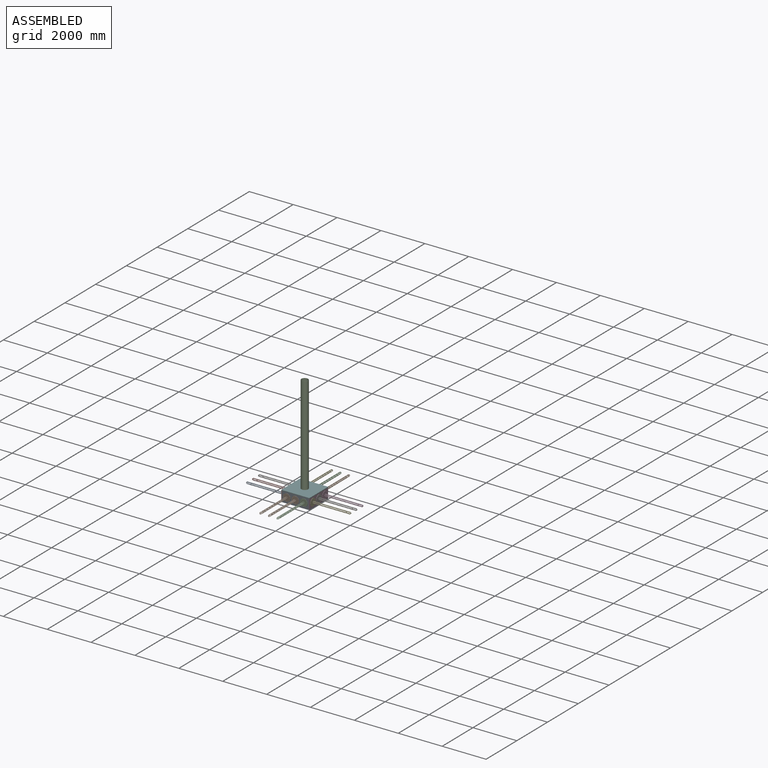
[diagram: assembled view]
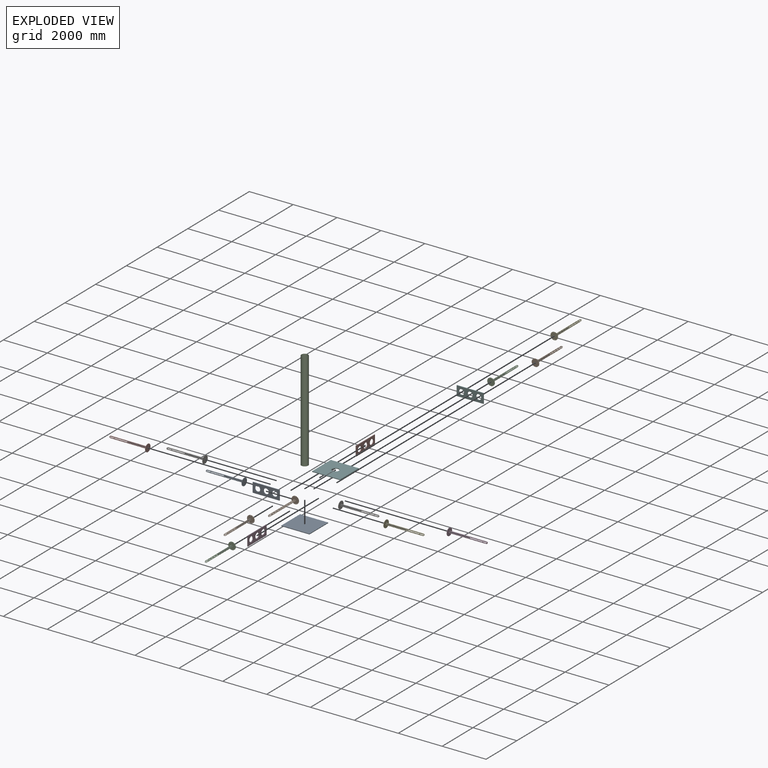
[diagram: exploded view]
GUIDED TOUR — MATED ASSEMBLY (Onshape document 75ec9b23009028ea6bf3534d, AutoMate assembly 75ec9b23009028ea6bf3534d_79885c54aa311b764d483315_f944a970cd1b9b2b946f377e_default)

This assembly has 19 components, labeled P0..P18 below (a component is one placed occurrence of a part; the same part can appear more than once), held together by 53 mates. A mate is a constraint between two components; its type names the relative motion it leaves free:
  CYLINDRICAL — leaves both rotation about and translation along the listed axis free,
  PLANAR — leaves sliding in the plane through the listed point (normal = the listed direction) and rotation about that normal free.
Axis/direction vectors are unit vectors and 'through' points are millimeter coordinates, both in the assembly's world frame.

MATES
  1. CYLINDRICAL "Cylindrical 24": P12 <-> P11, axis (1.000, 0.000, 0.000) through (1382.68, 472.31, -143.87) mm
  2. PLANAR "Planar 22": P8 <-> P15, direction (1.000, 0.000, 0.000) through (89.98, 600.04, -365.12) mm
  3. PLANAR "Planar 27": P3 <-> P11, direction (-1.000, 0.000, 0.000) through (1369.98, 1104.81, -291.37) mm
  4. PLANAR "Planar 25": P4 <-> P13, direction (0.000, -1.000, 0.000) through (339.98, 1472.31, -291.37) mm
  5. PLANAR "Planar 14": P5 <-> P13, direction (0.000, 1.000, 0.000) through (729.98, 1472.31, -56.37) mm
  6. PLANAR "Planar 5": P15 <-> P16, direction (1.000, 0.000, 0.000) through (119.98, 862.31, -71.37) mm
  7. CYLINDRICAL "Cylindrical 2": P10 <-> P16, axis (0.000, -1.000, 0.000) through (1267.48, 239.61, -291.37) mm
  8. CYLINDRICAL "Cylindrical 25": P12 <-> P11, axis (1.000, 0.000, 0.000) through (1382.68, 546.06, -163.63) mm
  9. CYLINDRICAL "Cylindrical 18": P1 <-> P13, axis (0.000, 1.000, 0.000) through (1119.98, 1485.01, -438.87) mm
  10. PLANAR "Planar 20": P6 <-> P15, direction (1.000, 0.000, 0.000) through (89.98, 1399.81, -291.37) mm
  11. CYLINDRICAL "Cylindrical 9": P8 <-> P15, axis (-1.000, 0.000, 0.000) through (77.28, 398.56, -163.63) mm
  12. PLANAR "Planar 2": P16 <-> P11, direction (1.000, 0.000, 0.000) through (1339.98, 267.31, -291.37) mm
  13. PLANAR "Planar 26": P12 <-> P11, direction (-1.000, 0.000, 0.000) through (1369.98, 472.31, -291.37) mm
  14. PLANAR "Planar 4": P13 <-> P11, direction (1.000, 0.000, 0.000) through (1339.98, 1457.31, -291.37) mm
  15. CYLINDRICAL "Cylindrical 16": P2 <-> P13, axis (0.000, 1.000, 0.000) through (877.48, 1485.01, -291.37) mm
  16. PLANAR "Planar 3": P15 <-> P13, direction (0.000, 1.000, 0.000) through (104.98, 1472.31, -291.37) mm
  17. CYLINDRICAL "Cylindrical 14": P4 <-> P13, axis (0.000, 1.000, 0.000) through (487.48, 1485.01, -291.37) mm
  18. CYLINDRICAL "Cylindrical 11": P7 <-> P15, axis (-1.000, 0.000, 0.000) through (77.28, 936.06, -419.11) mm
  19. CYLINDRICAL "Cylindrical 1": P18 <-> P5, axis (0.000, 0.000, -1.000) through (729.98, 862.31, -71.37) mm
  20. PLANAR "Planar 12": P16 <-> P0, direction (0.000, -1.000, 0.000) through (729.98, 252.31, -291.37) mm
  21. CYLINDRICAL "Cylindrical 5": P17 <-> P16, axis (0.000, -1.000, 0.000) through (857.72, 239.61, -217.62) mm
  22. CYLINDRICAL "Cylindrical 7": P9 <-> P16, axis (0.000, -1.000, 0.000) through (413.73, 239.61, -163.63) mm
  23. PLANAR "Planar 16": P18 <-> P5, direction (0.000, 0.000, -1.000) through (729.98, 862.31, -71.37) mm
  24. CYLINDRICAL "Cylindrical 10": P7 <-> P15, axis (-1.000, 0.000, 0.000) through (77.28, 862.31, -438.87) mm
  25. PLANAR "Planar 10": P0 <-> P11, direction (0.000, 0.000, 1.000) through (729.98, 862.31, -511.37) mm
  26. CYLINDRICAL "Cylindrical 19": P1 <-> P13, axis (0.000, 1.000, 0.000) through (1046.23, 1485.01, -419.11) mm
  27. CYLINDRICAL "Cylindrical 20": P3 <-> P11, axis (1.000, 0.000, 0.000) through (1382.68, 1252.31, -143.87) mm
  28. CYLINDRICAL "Cylindrical 3": P10 <-> P16, axis (0.000, -1.000, 0.000) through (1247.72, 239.61, -365.12) mm
  29. CYLINDRICAL "Cylindrical 22": P14 <-> P11, axis (-1.000, 0.000, 0.000) through (1369.98, 862.31, -143.87) mm
  30. CYLINDRICAL "Cylindrical 21": P3 <-> P11, axis (1.000, 0.000, 0.000) through (1382.68, 1326.06, -163.63) mm
  31. CYLINDRICAL "Cylindrical 15": P4 <-> P13, axis (0.000, 1.000, 0.000) through (467.72, 1485.01, -365.12) mm
  32. PLANAR "Planar 28": P14 <-> P11, direction (-1.000, 0.000, 0.000) through (1369.98, 862.31, -291.37) mm
  33. PLANAR "Planar 21": P7 <-> P15, direction (1.000, 0.000, 0.000) through (89.98, 1009.81, -291.37) mm
  34. PLANAR "Planar 8": P15 <-> P13, direction (0.000, 0.000, 1.000) through (104.98, 862.31, -71.37) mm
  35. CYLINDRICAL "Cylindrical 13": P15 <-> P6, axis (-1.000, 0.000, 0.000) through (89.98, 1326.06, -419.11) mm
  36. PLANAR "Planar 7": P13 <-> P11, direction (0.000, 0.000, 1.000) through (1339.98, 1442.31, -71.37) mm
  37. PLANAR "Planar 18": P17 <-> P16, direction (0.000, 1.000, 0.000) through (729.98, 252.31, -291.37) mm
  38. CYLINDRICAL "Cylindrical 8": P8 <-> P15, axis (-1.000, 0.000, 0.000) through (77.28, 472.31, -143.87) mm
  39. PLANAR "Planar 17": P10 <-> P16, direction (0.000, 1.000, 0.000) through (1119.98, 252.31, -291.37) mm
  40. PLANAR "Planar 9": P16 <-> P11, direction (0.000, 0.000, 1.000) through (729.98, 267.31, -71.37) mm
  41. PLANAR "Planar 15": P5 <-> P15, direction (-1.000, 0.000, 0.000) through (89.98, 862.31, -56.37) mm
  42. CYLINDRICAL "Cylindrical 23": P14 <-> P11, axis (1.000, 0.000, 0.000) through (1382.68, 936.06, -163.63) mm
  43. PLANAR "Planar 23": P2 <-> P13, direction (0.000, -1.000, 0.000) through (710.93, 1472.31, -324.37) mm
  44. PLANAR "Planar 24": P1 <-> P13, direction (0.000, -1.000, 0.000) through (1193.73, 1472.31, -419.11) mm
  45. PLANAR "Planar 6": P15 <-> P16, direction (0.000, -1.000, 0.000) through (104.98, 252.31, -291.37) mm
  46. PLANAR "Planar 13": P13 <-> P5, direction (0.000, 0.000, 1.000) through (1339.98, 1442.31, -71.37) mm
  47. CYLINDRICAL "Cylindrical 6": P9 <-> P16, axis (0.000, -1.000, 0.000) through (339.98, 239.61, -143.87) mm
  48. CYLINDRICAL "Cylindrical 12": P6 <-> P15, axis (-1.000, 0.000, 0.000) through (77.28, 1252.31, -438.87) mm
  49. CYLINDRICAL "Cylindrical 17": P2 <-> P13, axis (0.000, 1.000, 0.000) through (857.72, 1485.01, -365.12) mm
  50. PLANAR "Planar 1": P11 <-> P16, direction (0.000, -1.000, 0.000) through (1354.98, 252.31, -291.37) mm
  51. CYLINDRICAL "Cylindrical 4": P17 <-> P16, axis (0.000, -1.000, 0.000) through (803.73, 239.61, -163.63) mm
  52. PLANAR "Planar 19": P9 <-> P16, direction (0.000, 1.000, 0.000) through (467.72, 252.31, -217.62) mm
  53. PLANAR "Planar 11": P15 <-> P0, direction (-1.000, 0.000, 0.000) through (89.98, 862.31, -291.37) mm

ASSEMBLY ORDER
  1. P17 — the base component [order verified]
  2. P9 [order verified]
  3. P16 [order verified]
  4. P5 [order verified]
  5. P8 [order verified]
  6. P6 [order verified]
  7. P10 [order verified]
  8. P7 [order verified]
  9. P15 [order verified]
  10. P4 [order verified]
  11. P0 [order verified]
  12. P1 [order verified]
  13. P11 [order verified]
  14. P14 [order verified]
  15. P12 [order verified]
  16. P3 [order verified]
  17. P13 [order verified]
  18. P18 [order verified]
  19. P2 [order verified]
Order-tag legend:
  [order verified] — this step's position reverses a verified removal order: the component was checked to insert without passing through the ones already placed.

Of the 19 components, 7 carry the full construction recipe — the FeatureScript program that regenerates the part's solid from scratch; the rest are supplied as boundary geometry only.
Because this assembly has more than 12 components, the tour below covers the 12 most significant ones individually (every recipe-attached component first, then the largest by part volume), in assembly order; the remaining 7 are summarized together in a grouped section at the end.
Each toured component is shown spotlighted twice — in the assembled view, then in the exploded view, where a leader line traces a displaced component back to its assembled socket (saturated green if recipe-attached, orange if geometry-only; every other component desaturated gray) — followed by its recipe or geometry summary and the mates that hold it.
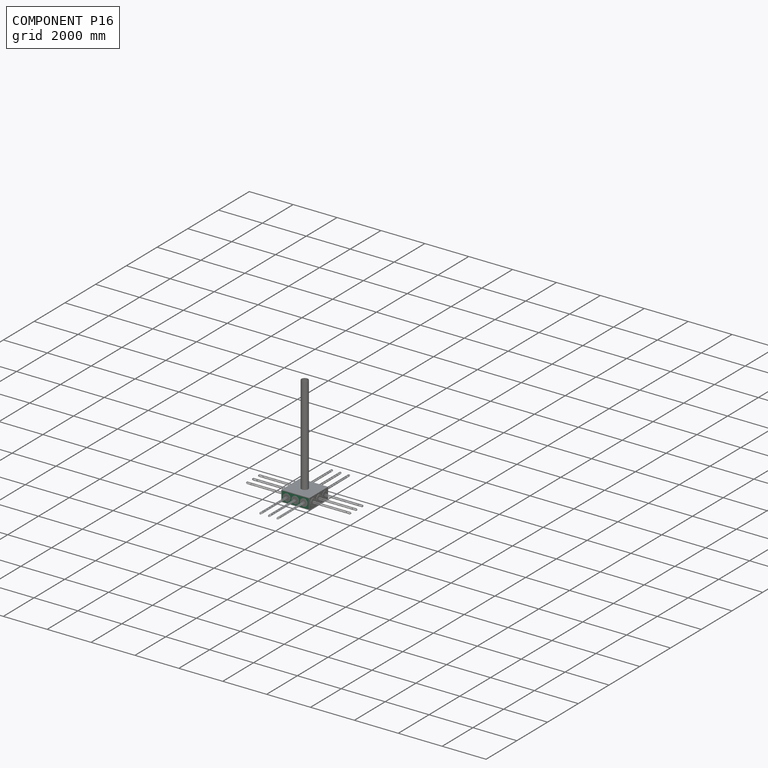
[diagram: component P16 — assembled]
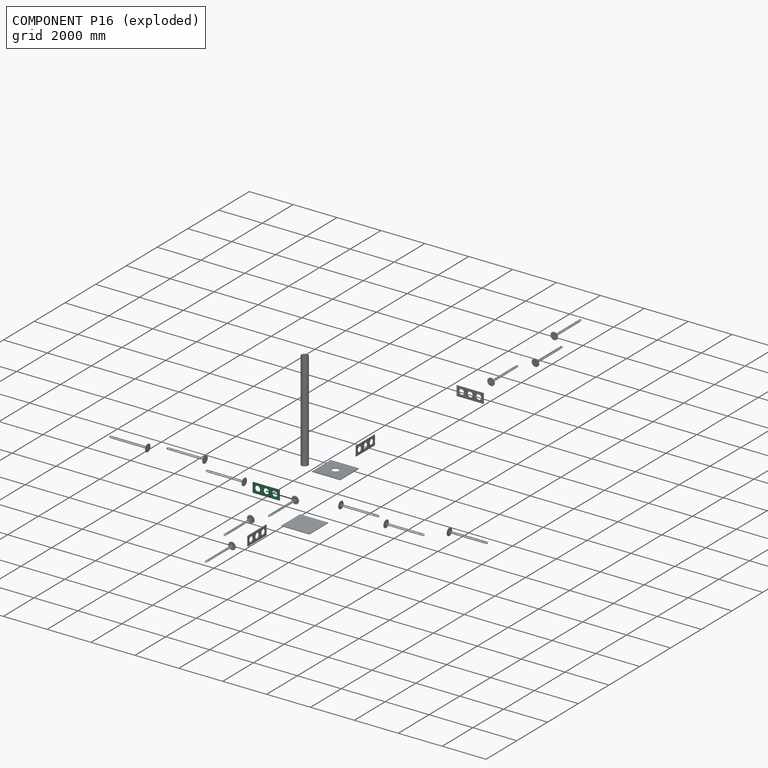
[diagram: component P16 — exploded]
COMPONENT P16 — same part as P11 (CADFS 00186368); its construction recipe is shown at P11.
Held by: PLANAR mate "Planar 5" to P15; CYLINDRICAL mate "Cylindrical 2" to P10; PLANAR mate "Planar 2" to P11; PLANAR mate "Planar 12" to P0; CYLINDRICAL mate "Cylindrical 5" to P17; CYLINDRICAL mate "Cylindrical 7" to P9; CYLINDRICAL mate "Cylindrical 3" to P10; PLANAR mate "Planar 18" to P17; PLANAR mate "Planar 17" to P10; PLANAR mate "Planar 9" to P11; PLANAR mate "Planar 6" to P15; CYLINDRICAL mate "Cylindrical 6" to P9; PLANAR mate "Planar 1" to P11; CYLINDRICAL mate "Cylindrical 4" to P17; PLANAR mate "Planar 19" to P9.
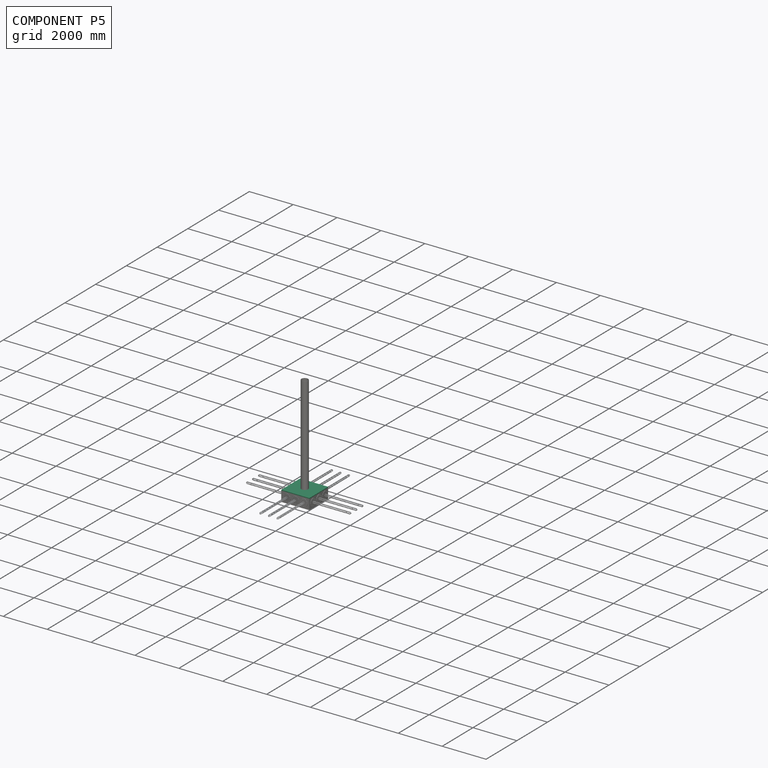
[diagram: component P5 — assembled]
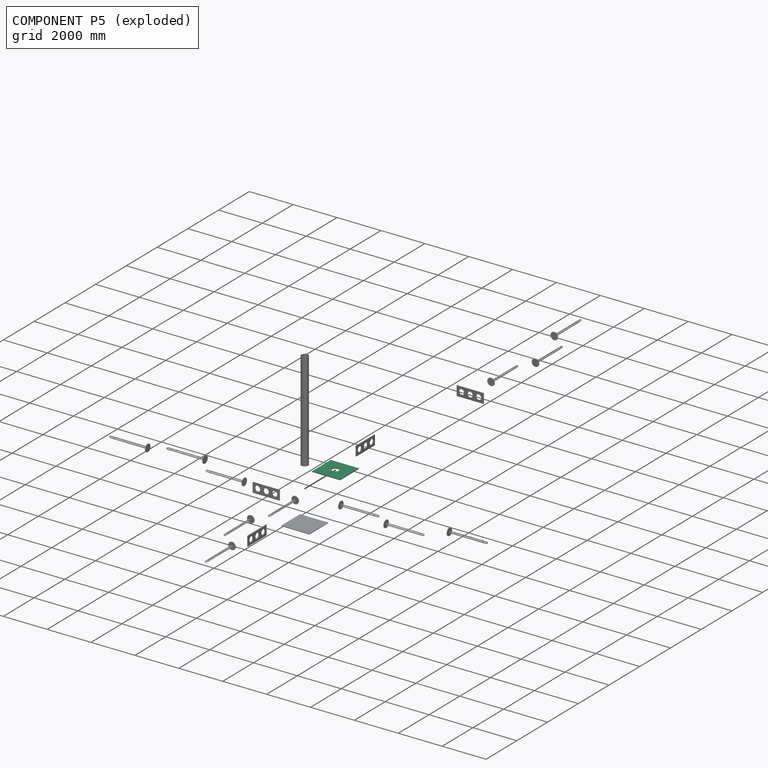
[diagram: component P5 — exploded]
COMPONENT P5 — recipe-attached (CADFS 00186370, mesh-verified: the recipe's output STEP matches this component's geometry to below the mesh-comparison resolution (tessellation chordal tolerance ~2.65 mm)).
Held by: PLANAR mate "Planar 14" to P13; CYLINDRICAL mate "Cylindrical 1" to P18; PLANAR mate "Planar 16" to P18; PLANAR mate "Planar 15" to P15; PLANAR mate "Planar 13" to P13.
Construction recipe (FeatureScript — the CAD program that rebuilds this solid; sketch coordinates are in the units given by the * unit suffixes, e.g. mm):

FeatureScript 1511;
import(path : "onshape/std/geometry.fs", version : "1511.0");
import(path : "onshape/std/common.fs", version : "1511.0");
const mm = millimeter;
const VERTEX = EntityType.VERTEX;
const EDGE = EntityType.EDGE;
const FACE = EntityType.FACE;
const BODY = EntityType.BODY;
function v(x, y){return vector(x, y);}
function OD(order){return orderDisambiguation(order);}
function OSD(set){return originalSetDisambiguation(set);}
function TD(topology){return topologyDisambiguation(topology);}
function TDD(query){return trueDependencyDisambiguation(query);}
function sQuery(a, b, c) {return sketchEntityQuery(a, b, c);}

annotation { "Feature Type Name" : "Feature", "Feature Type Description" : "" }
export const myFeature = defineFeature(function(context is Context, id is Id, definition is map)
    precondition{}
    {
        {
            var Q0;
            Q0=qCreatedBy(makeId("Top.planeOp"),FACE);
            var sketch = newSketch(context, id + "F0", { "sketchPlane" : qUnion([Q0])});
            skLineSegment(sketch, "E0.bottom", {"start": v(-1280, 1220) * mm, "end": v(0, 1220) * mm});
            skLineSegment(sketch, "E0.top", {"start": v(-1280, 0) * mm, "end": v(0, 0) * mm});
            skLineSegment(sketch, "E0.left", {"start": v(-1280, 1220) * mm, "end": v(-1280, 0) * mm});
            skLineSegment(sketch, "E0.right", {"start": v(0, 1220) * mm, "end": v(0, 0) * mm});
            skCircle(sketch, "E1", {"center": v(-640, 610) * mm, "radius": 153 * mm});
            skLineSegment(sketch, "E2", {"start": v(-640, 610) * mm, "end": v(-640, 0) * mm, "construction": true});
            skLineSegment(sketch, "E3", {"start": v(-640, 610) * mm, "end": v(0, 610) * mm, "construction": true});
            skSolve(sketch);
        }
        {
            var Q0;
            Q0 = qSketchRegion(id + "F0", true);
            extrude(context, id + "F1", {"entities" : qUnion([Q0]), "depth" : 30 * mm});
        }
    });
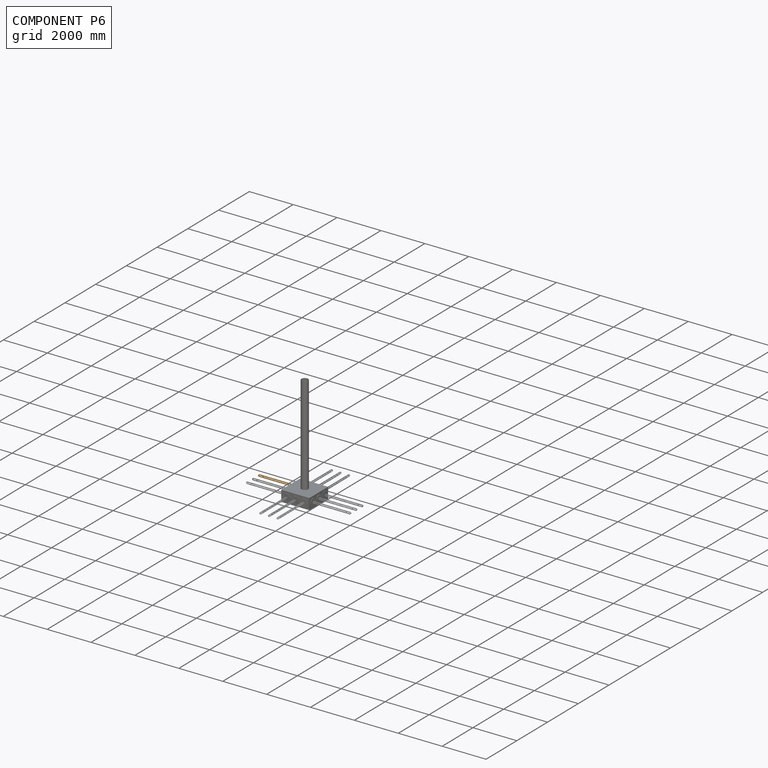
[diagram: component P6 — assembled]
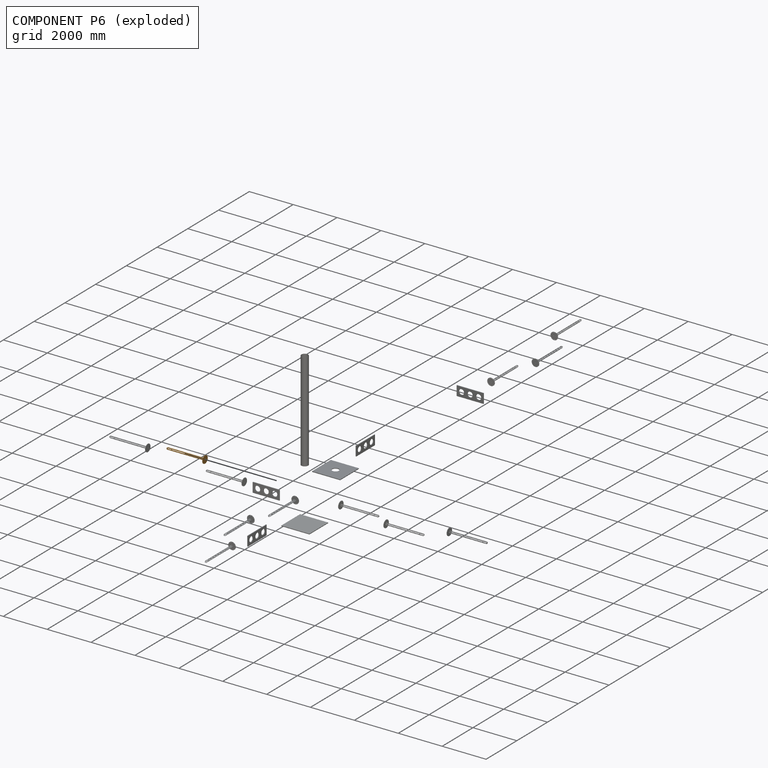
[diagram: component P6 — exploded]
COMPONENT P6 — geometry summary (no construction recipe available for this part):
  bounding box: 1746.7 x 340.0 x 340.0 mm
  B-rep topology: 1 solid, 33 faces, 194 edges
  volume: 1468101 mm^3 (1% of its bounding box)
  symmetry: 2-fold rotationally symmetric about the y axis; mirror-symmetric across its x mid-plane, z mid-plane
Held by: PLANAR mate "Planar 20" to P15; CYLINDRICAL mate "Cylindrical 13" to P15; CYLINDRICAL mate "Cylindrical 12" to P15.
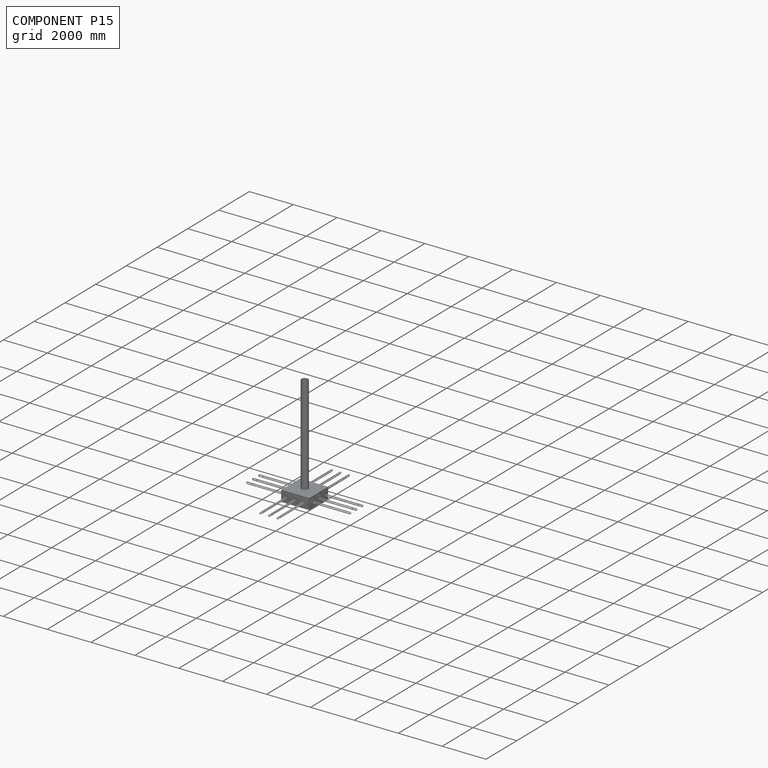
[diagram: component P15 — assembled]
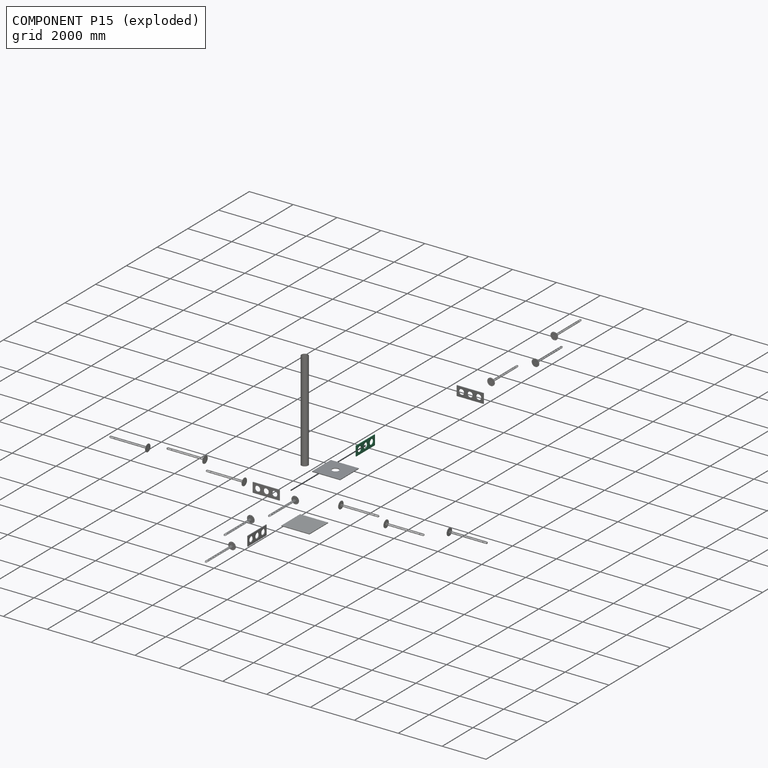
[diagram: component P15 — exploded]
COMPONENT P15 — same part as P11 (CADFS 00186368); its construction recipe is shown at P11.
Held by: PLANAR mate "Planar 22" to P8; PLANAR mate "Planar 5" to P16; PLANAR mate "Planar 20" to P6; CYLINDRICAL mate "Cylindrical 9" to P8; PLANAR mate "Planar 3" to P13; CYLINDRICAL mate "Cylindrical 11" to P7; CYLINDRICAL mate "Cylindrical 10" to P7; PLANAR mate "Planar 21" to P7; PLANAR mate "Planar 8" to P13; CYLINDRICAL mate "Cylindrical 13" to P6; CYLINDRICAL mate "Cylindrical 8" to P8; PLANAR mate "Planar 15" to P5; PLANAR mate "Planar 6" to P16; CYLINDRICAL mate "Cylindrical 12" to P6; PLANAR mate "Planar 11" to P0.
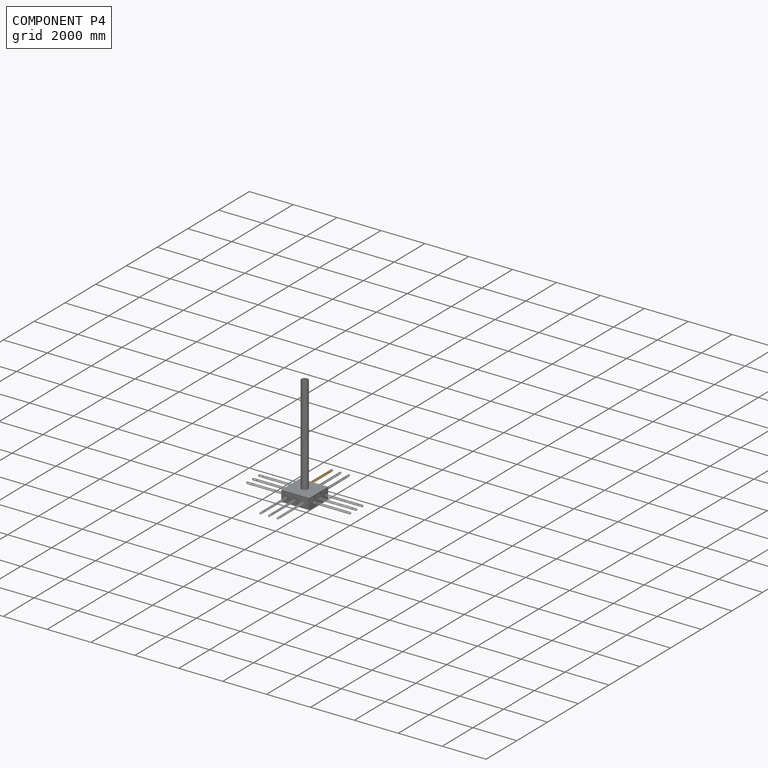
[diagram: component P4 — assembled]
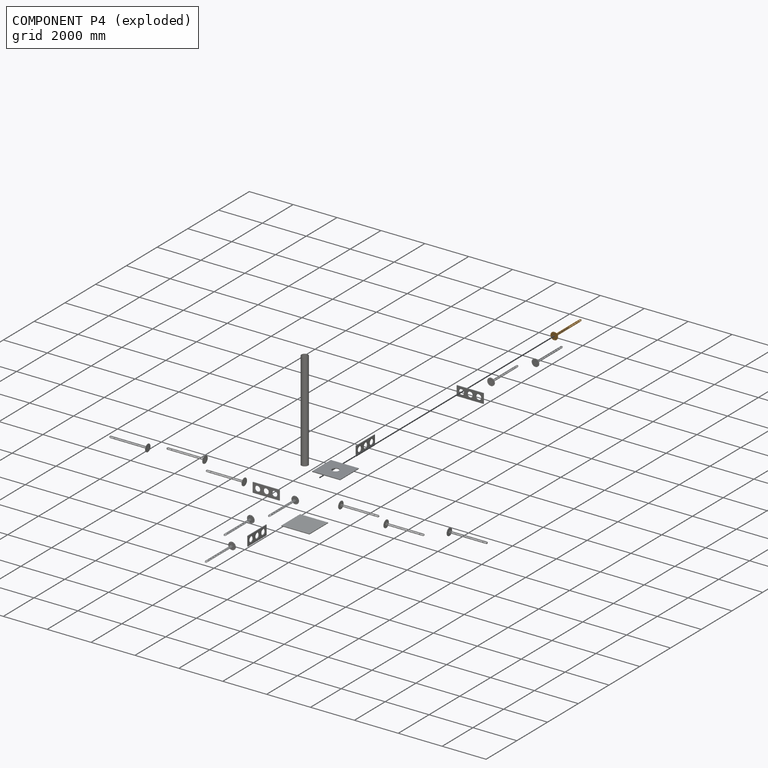
[diagram: component P4 — exploded]
COMPONENT P4 — geometry summary (no construction recipe available for this part):
  bounding box: 1746.7 x 340.0 x 340.0 mm
  B-rep topology: 1 solid, 33 faces, 194 edges
  volume: 1468101 mm^3 (1% of its bounding box)
  symmetry: 2-fold rotationally symmetric about the y axis; mirror-symmetric across its x mid-plane, z mid-plane
Held by: PLANAR mate "Planar 25" to P13; CYLINDRICAL mate "Cylindrical 14" to P13; CYLINDRICAL mate "Cylindrical 15" to P13.
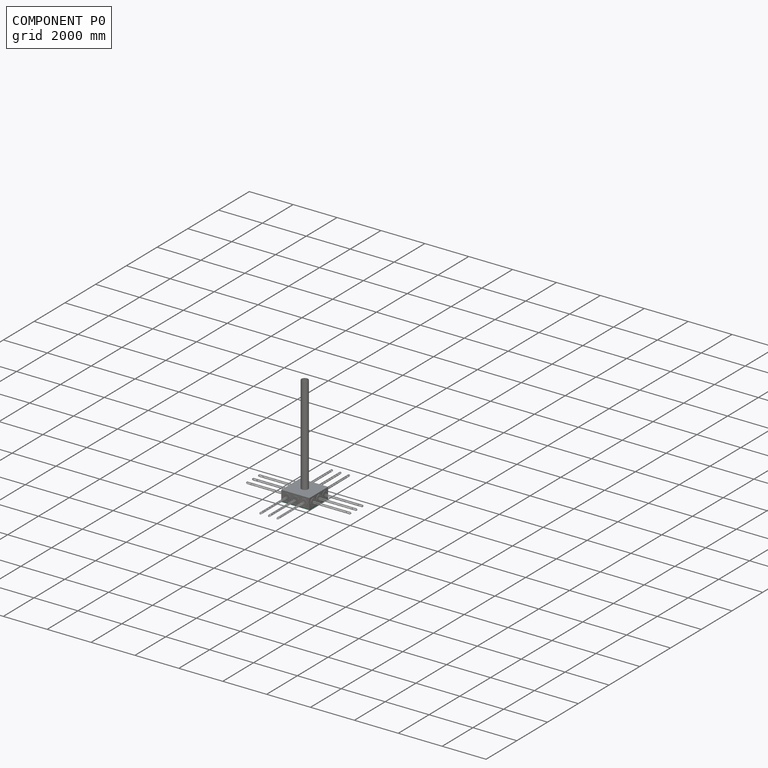
[diagram: component P0 — assembled]
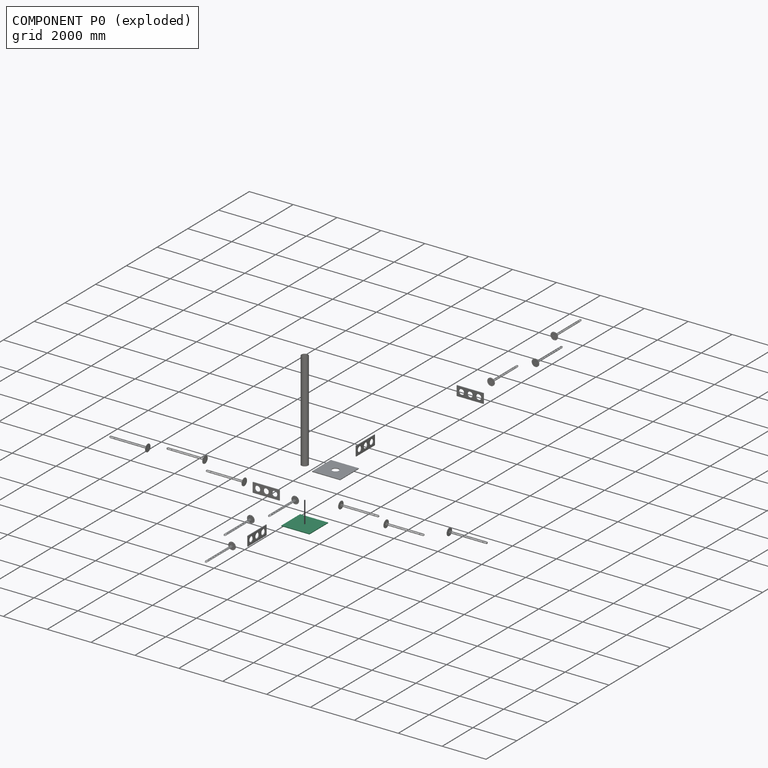
[diagram: component P0 — exploded]
COMPONENT P0 — recipe-attached (CADFS 00186369, mesh-verified: the recipe's output STEP matches this component's geometry to below the mesh-comparison resolution (tessellation chordal tolerance ~2.65 mm)).
Held by: PLANAR mate "Planar 12" to P16; PLANAR mate "Planar 10" to P11; PLANAR mate "Planar 11" to P15.
Construction recipe (FeatureScript — the CAD program that rebuilds this solid; sketch coordinates are in the units given by the * unit suffixes, e.g. mm):

FeatureScript 1511;
import(path : "onshape/std/geometry.fs", version : "1511.0");
import(path : "onshape/std/common.fs", version : "1511.0");
const mm = millimeter;
const VERTEX = EntityType.VERTEX;
const EDGE = EntityType.EDGE;
const FACE = EntityType.FACE;
const BODY = EntityType.BODY;
function v(x, y){return vector(x, y);}
function OD(order){return orderDisambiguation(order);}
function OSD(set){return originalSetDisambiguation(set);}
function TD(topology){return topologyDisambiguation(topology);}
function TDD(query){return trueDependencyDisambiguation(query);}
function sQuery(a, b, c) {return sketchEntityQuery(a, b, c);}

annotation { "Feature Type Name" : "Feature", "Feature Type Description" : "" }
export const myFeature = defineFeature(function(context is Context, id is Id, definition is map)
    precondition{}
    {
        {
            var Q0;
            Q0=qCreatedBy(makeId("Top.planeOp"),FACE);
            var sketch = newSketch(context, id + "F0", { "sketchPlane" : qUnion([Q0])});
            skLineSegment(sketch, "E0.bottom", {"start": v(-1280, 1220) * mm, "end": v(0, 1220) * mm});
            skLineSegment(sketch, "E0.top", {"start": v(-1280, 0) * mm, "end": v(0, 0) * mm});
            skLineSegment(sketch, "E0.left", {"start": v(-1280, 1220) * mm, "end": v(-1280, 0) * mm});
            skLineSegment(sketch, "E0.right", {"start": v(0, 1220) * mm, "end": v(0, 0) * mm});
            skSolve(sketch);
        }
        {
            var Q0;
            Q0 = qSketchRegion(id + "F0", true);
            extrude(context, id + "F1", {"entities" : qUnion([Q0]), "depth" : 30 * mm});
        }
    });
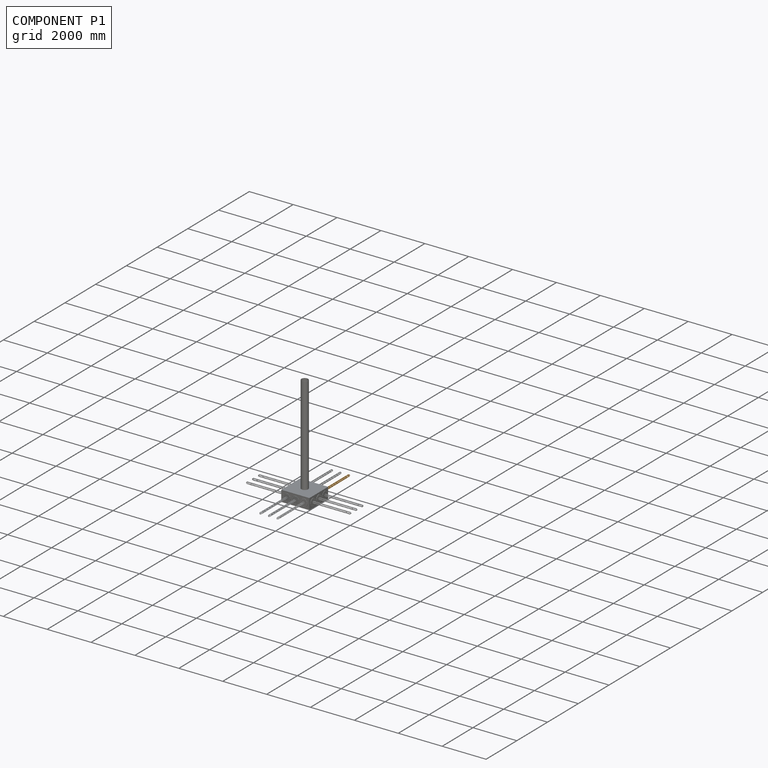
[diagram: component P1 — assembled]
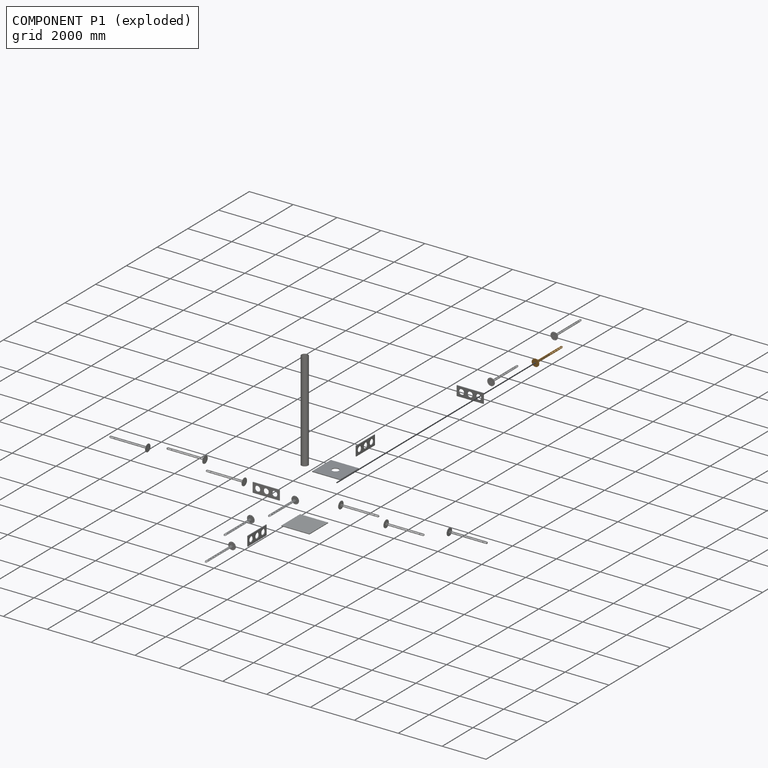
[diagram: component P1 — exploded]
COMPONENT P1 — geometry summary (no construction recipe available for this part):
  bounding box: 1746.7 x 340.0 x 340.0 mm
  B-rep topology: 1 solid, 33 faces, 194 edges
  volume: 1468101 mm^3 (1% of its bounding box)
  symmetry: 2-fold rotationally symmetric about the y axis; mirror-symmetric across its x mid-plane, z mid-plane
Held by: CYLINDRICAL mate "Cylindrical 18" to P13; CYLINDRICAL mate "Cylindrical 19" to P13; PLANAR mate "Planar 24" to P13.
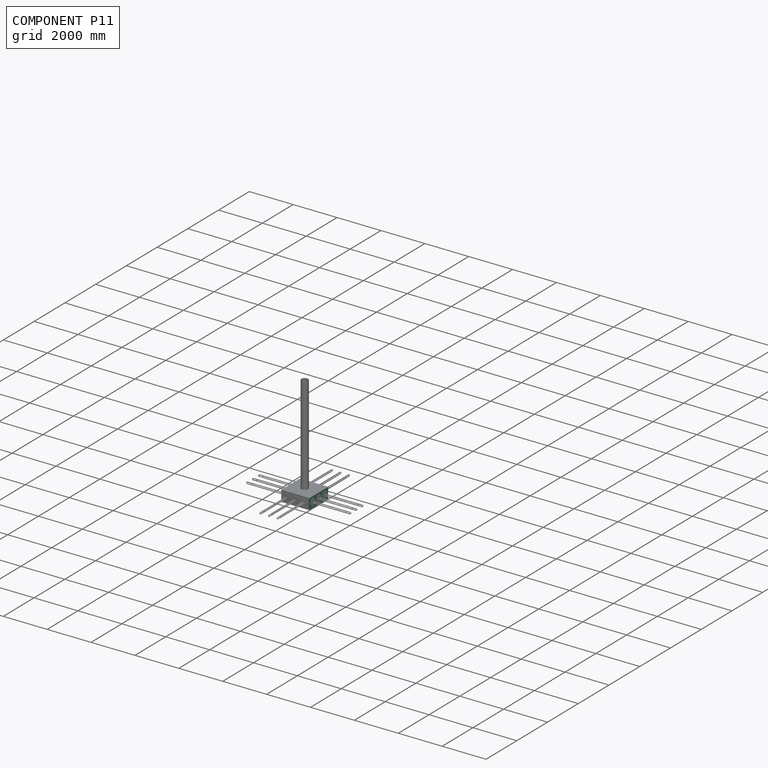
[diagram: component P11 — assembled]
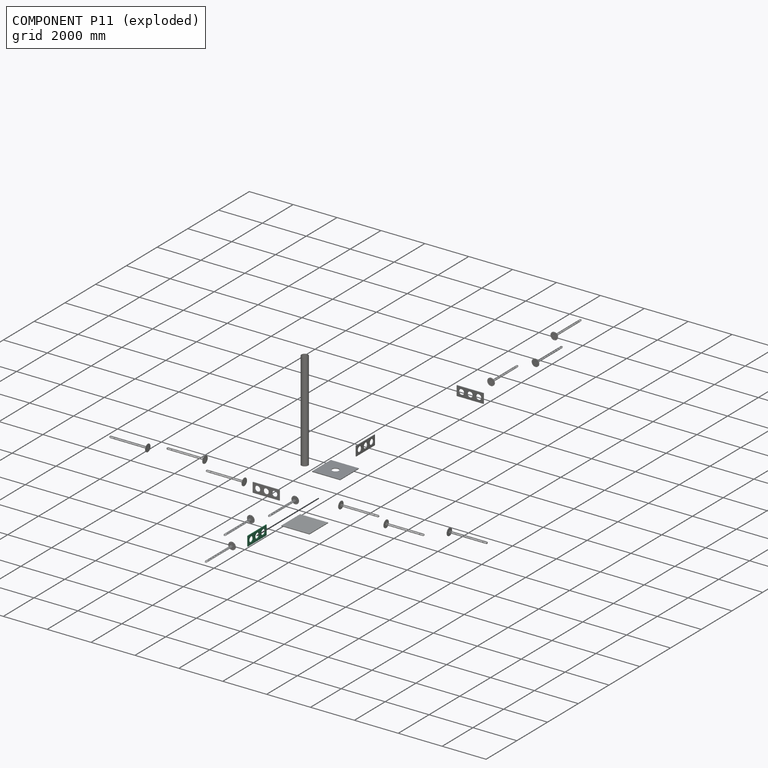
[diagram: component P11 — exploded]
COMPONENT P11 — recipe-attached (CADFS 00186368, mesh-verified: the recipe's output STEP matches this component's geometry to below the mesh-comparison resolution (tessellation chordal tolerance ~1.95 mm)).
Held by: CYLINDRICAL mate "Cylindrical 24" to P12; PLANAR mate "Planar 27" to P3; CYLINDRICAL mate "Cylindrical 25" to P12; PLANAR mate "Planar 2" to P16; PLANAR mate "Planar 26" to P12; PLANAR mate "Planar 4" to P13; PLANAR mate "Planar 10" to P0; CYLINDRICAL mate "Cylindrical 20" to P3; CYLINDRICAL mate "Cylindrical 22" to P14; CYLINDRICAL mate "Cylindrical 21" to P3; PLANAR mate "Planar 28" to P14; PLANAR mate "Planar 7" to P13; PLANAR mate "Planar 9" to P16; CYLINDRICAL mate "Cylindrical 23" to P14; PLANAR mate "Planar 1" to P16.
Construction recipe (FeatureScript — the CAD program that rebuilds this solid; sketch coordinates are in the units given by the * unit suffixes, e.g. mm):

FeatureScript 1511;
import(path : "onshape/std/geometry.fs", version : "1511.0");
import(path : "onshape/std/common.fs", version : "1511.0");
const mm = millimeter;
const VERTEX = EntityType.VERTEX;
const EDGE = EntityType.EDGE;
const FACE = EntityType.FACE;
const BODY = EntityType.BODY;
function v(x, y){return vector(x, y);}
function OD(order){return orderDisambiguation(order);}
function OSD(set){return originalSetDisambiguation(set);}
function TD(topology){return topologyDisambiguation(topology);}
function TDD(query){return trueDependencyDisambiguation(query);}
function sQuery(a, b, c) {return sketchEntityQuery(a, b, c);}

annotation { "Feature Type Name" : "Feature", "Feature Type Description" : "" }
export const myFeature = defineFeature(function(context is Context, id is Id, definition is map)
    precondition{}
    {
        {
            var Q0;
            Q0=qCreatedBy(makeId("Right.planeOp"),FACE);
            var sketch = newSketch(context, id + "F0", { "sketchPlane" : qUnion([Q0])});
            skCircle(sketch, "E0", {"center": v(610, 220) * mm, "radius": 120 * mm});
            skCircle(sketch, "E1", {"center": v(220, 220) * mm, "radius": 120 * mm});
            skCircle(sketch, "E2", {"center": v(1000, 220) * mm, "radius": 120 * mm});
            skLineSegment(sketch, "E3.bottom", {"start": v(0, 0) * mm, "end": v(1220, 0) * mm});
            skLineSegment(sketch, "E3.top", {"start": v(0, 440) * mm, "end": v(1220, 440) * mm});
            skLineSegment(sketch, "E3.left", {"start": v(0, 0) * mm, "end": v(0, 440) * mm});
            skLineSegment(sketch, "E3.right", {"start": v(1220, 0) * mm, "end": v(1220, 440) * mm});
            skLineSegment(sketch, "E4", {"start": v(0, 220) * mm, "end": v(1220, 220) * mm, "construction": true});
            skSolve(sketch);
        }
        {
            var Q0;
            Q0=makeQuery(id+"F0.imprint","IMPRINT",FACE,{"disambiguationData":[TD([[makeQuery(id+"F0.imprint","IMPRINT",EDGE,{"derivedFrom":sQuery(id+"F0.wireOp",EDGE,"E0")}),-1.0]])]});
            extrude(context, id + "F1", {"entities" : qUnion([Q0]), "depth" : 30 * mm});
        }
        {
            var Q0;
            Q0=makeQuery(id+"F1.opExtrude","CAP_FACE",FACE,{"disambiguationData":[OSD([sQuery(id+"F0.wireOp",EDGE,"E0"),sQuery(id+"F0.wireOp",EDGE,"E1"),sQuery(id+"F0.wireOp",EDGE,"E2"),sQuery(id+"F0.wireOp",EDGE,"E3.bottom"),sQuery(id+"F0.wireOp",EDGE,"E3.top"),sQuery(id+"F0.wireOp",EDGE,"E3.left"),sQuery(id+"F0.wireOp",EDGE,"E3.right")])],"isStart":false});
            var sketch = newSketch(context, id + "F2", { "sketchPlane" : qUnion([Q0])});
            skCircle(sketch, "E5", {"center": v(367.5, 220) * mm, "radius": 11 * mm});
            skCircle(sketch, "E6.1.0", {"center": v(347.74, 146.25) * mm, "radius": 11 * mm});
            skCircle(sketch, "E6.2.0", {"center": v(293.75, 92.26) * mm, "radius": 11 * mm});
            skCircle(sketch, "E6.3.0", {"center": v(220, 72.5) * mm, "radius": 11 * mm});
            skCircle(sketch, "E6.4.0", {"center": v(146.25, 92.26) * mm, "radius": 11 * mm});
            skCircle(sketch, "E6.5.0", {"center": v(92.26, 146.25) * mm, "radius": 11 * mm});
            skCircle(sketch, "E6.6.0", {"center": v(72.5, 220) * mm, "radius": 11 * mm});
            skCircle(sketch, "E6.7.0", {"center": v(92.26, 293.75) * mm, "radius": 11 * mm});
            skCircle(sketch, "E6.8.0", {"center": v(146.25, 347.74) * mm, "radius": 11 * mm});
            skCircle(sketch, "E6.9.0", {"center": v(220, 367.5) * mm, "radius": 11 * mm});
            skCircle(sketch, "E6.10.0", {"center": v(293.75, 347.74) * mm, "radius": 11 * mm});
            skCircle(sketch, "E6.11.0", {"center": v(347.74, 293.75) * mm, "radius": 11 * mm});
            skPoint(sketch, "E6.center", {"position": v(220, 220) * mm});
            skLineSegment(sketch, "E6.anchor1", {"start": v(220, 220) * mm, "end": v(367.5, 220) * mm, "construction": true});
            skLineSegment(sketch, "E6.anchor2", {"start": v(220, 220) * mm, "end": v(347.74, 293.75) * mm, "construction": true});
            skCircle(sketch, "E7", {"center": v(757.5, 220) * mm, "radius": 11 * mm});
            skCircle(sketch, "E8.1.0", {"center": v(737.74, 293.75) * mm, "radius": 11 * mm});
            skCircle(sketch, "E8.2.0", {"center": v(683.75, 347.74) * mm, "radius": 11 * mm});
            skCircle(sketch, "E8.3.0", {"center": v(610, 367.5) * mm, "radius": 11 * mm});
            skCircle(sketch, "E8.4.0", {"center": v(536.25, 347.74) * mm, "radius": 11 * mm});
            skCircle(sketch, "E8.5.0", {"center": v(482.26, 293.75) * mm, "radius": 11 * mm});
            skCircle(sketch, "E8.6.0", {"center": v(462.5, 220) * mm, "radius": 11 * mm});
            skCircle(sketch, "E8.7.0", {"center": v(482.26, 146.25) * mm, "radius": 11 * mm});
            skCircle(sketch, "E8.8.0", {"center": v(536.25, 92.26) * mm, "radius": 11 * mm});
            skCircle(sketch, "E8.9.0", {"center": v(610, 72.5) * mm, "radius": 11 * mm});
            skCircle(sketch, "E8.10.0", {"center": v(683.75, 92.26) * mm, "radius": 11 * mm});
            skCircle(sketch, "E8.11.0", {"center": v(737.74, 146.25) * mm, "radius": 11 * mm});
            skPoint(sketch, "E8.center", {"position": v(610, 220) * mm});
            skLineSegment(sketch, "E9", {"start": v(610, 220) * mm, "end": v(757.5, 220) * mm, "construction": true});
            skCircle(sketch, "E10", {"center": v(1147.5, 220) * mm, "radius": 11 * mm});
            skCircle(sketch, "E11.1.0", {"center": v(1127.74, 293.75) * mm, "radius": 11 * mm});
            skCircle(sketch, "E11.2.0", {"center": v(1073.75, 347.74) * mm, "radius": 11 * mm});
            skCircle(sketch, "E11.3.0", {"center": v(1000, 367.5) * mm, "radius": 11 * mm});
            skCircle(sketch, "E11.4.0", {"center": v(926.25, 347.74) * mm, "radius": 11 * mm});
            skCircle(sketch, "E11.5.0", {"center": v(872.26, 293.75) * mm, "radius": 11 * mm});
            skCircle(sketch, "E11.6.0", {"center": v(852.5, 220) * mm, "radius": 11 * mm});
            skCircle(sketch, "E11.7.0", {"center": v(872.26, 146.25) * mm, "radius": 11 * mm});
            skCircle(sketch, "E11.8.0", {"center": v(926.25, 92.26) * mm, "radius": 11 * mm});
            skCircle(sketch, "E11.9.0", {"center": v(1000, 72.5) * mm, "radius": 11 * mm});
            skCircle(sketch, "E11.10.0", {"center": v(1073.75, 92.26) * mm, "radius": 11 * mm});
            skCircle(sketch, "E11.11.0", {"center": v(1127.74, 146.25) * mm, "radius": 11 * mm});
            skPoint(sketch, "E11.center", {"position": v(1000, 220) * mm});
            skLineSegment(sketch, "E12", {"start": v(1000, 220) * mm, "end": v(1147.5, 220) * mm});
            skSolve(sketch);
        }
        {
            var Q0;
            Q0 = qSketchRegion(id + "F2", true);
            extrude(context, id + "F3", {"entities" : qUnion([Q0]), "operationType" : NewBodyOperationType.REMOVE, "oppositeDirection" : true, "depth" : 25 * mm});
        }
    });
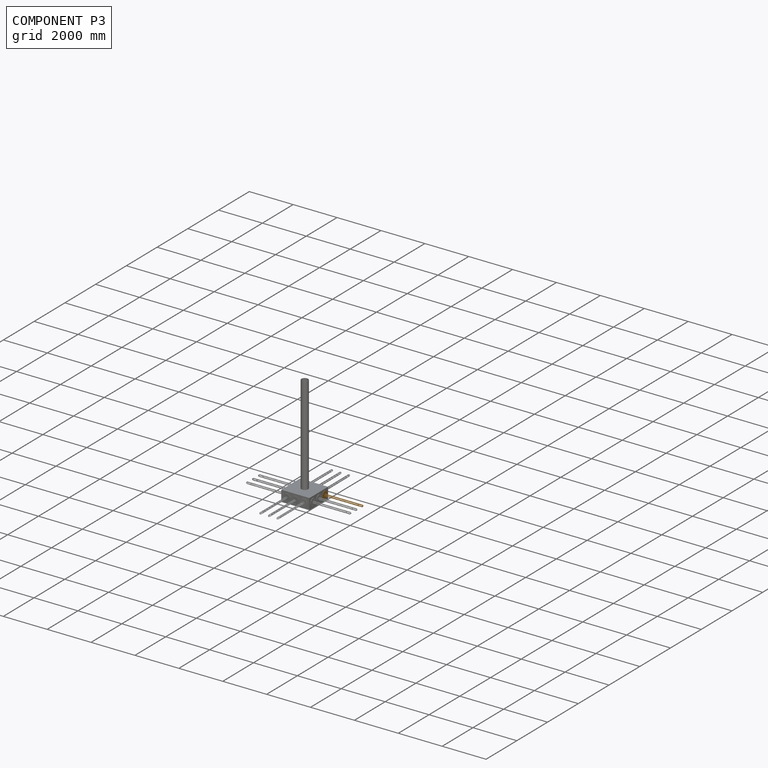
[diagram: component P3 — assembled]
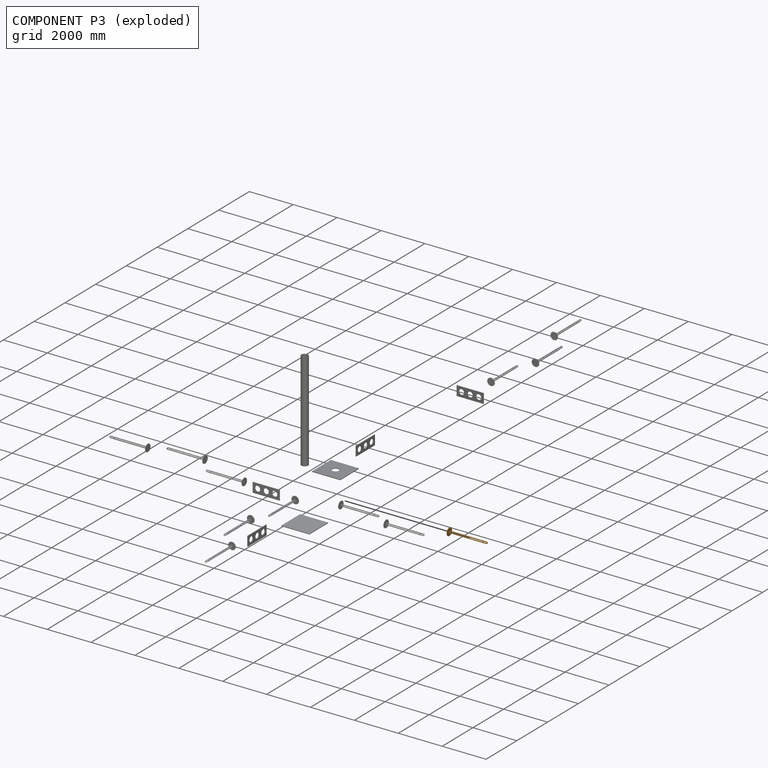
[diagram: component P3 — exploded]
COMPONENT P3 — geometry summary (no construction recipe available for this part):
  bounding box: 1746.7 x 340.0 x 340.0 mm
  B-rep topology: 1 solid, 33 faces, 194 edges
  volume: 1468101 mm^3 (1% of its bounding box)
  symmetry: 2-fold rotationally symmetric about the y axis; mirror-symmetric across its x mid-plane, z mid-plane
Held by: PLANAR mate "Planar 27" to P11; CYLINDRICAL mate "Cylindrical 20" to P11; CYLINDRICAL mate "Cylindrical 21" to P11.
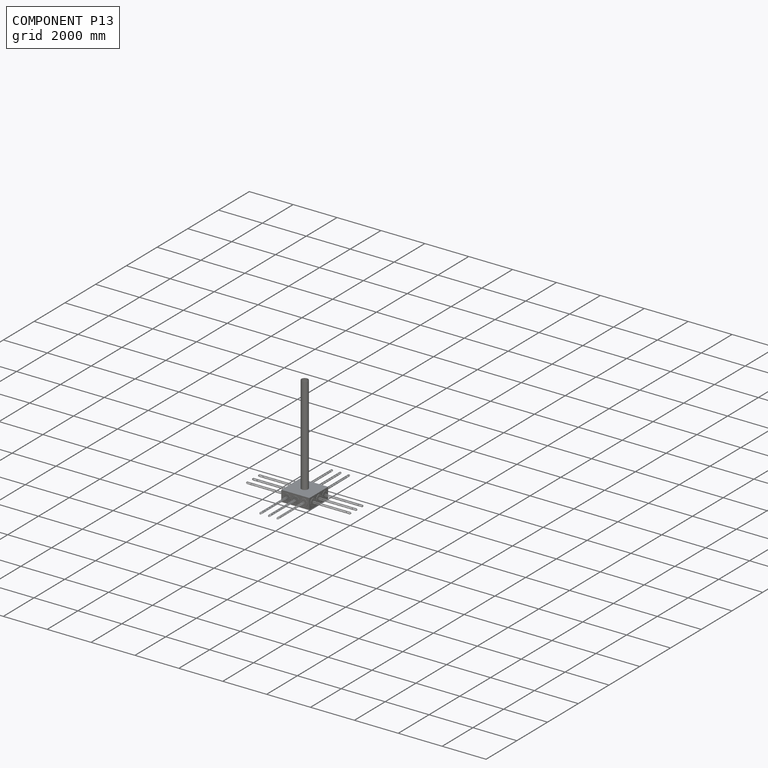
[diagram: component P13 — assembled]
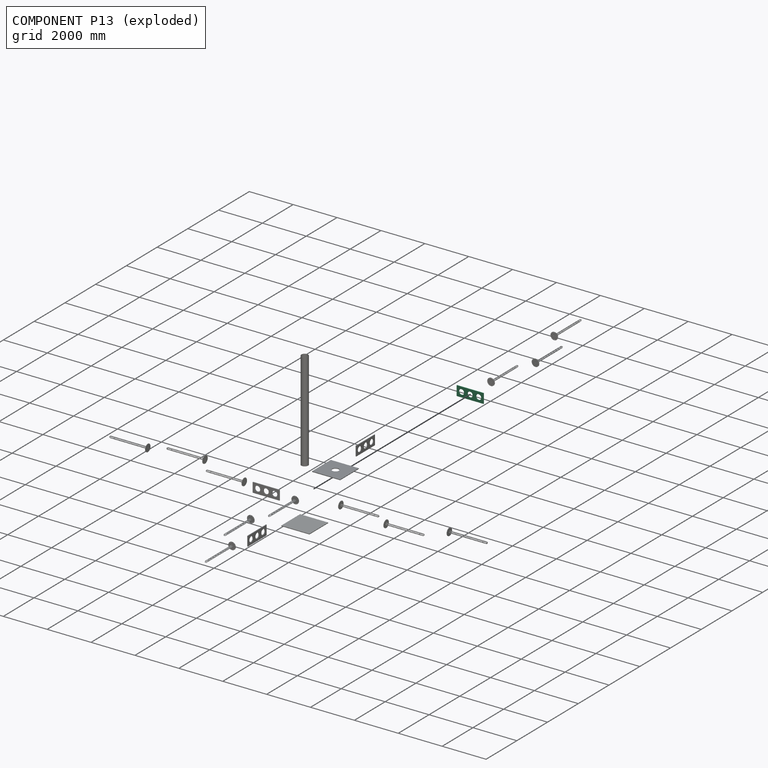
[diagram: component P13 — exploded]
COMPONENT P13 — same part as P11 (CADFS 00186368); its construction recipe is shown at P11.
Held by: PLANAR mate "Planar 25" to P4; PLANAR mate "Planar 14" to P5; CYLINDRICAL mate "Cylindrical 18" to P1; PLANAR mate "Planar 4" to P11; CYLINDRICAL mate "Cylindrical 16" to P2; PLANAR mate "Planar 3" to P15; CYLINDRICAL mate "Cylindrical 14" to P4; CYLINDRICAL mate "Cylindrical 19" to P1; CYLINDRICAL mate "Cylindrical 15" to P4; PLANAR mate "Planar 8" to P15; PLANAR mate "Planar 7" to P11; PLANAR mate "Planar 23" to P2; PLANAR mate "Planar 24" to P1; PLANAR mate "Planar 13" to P5; CYLINDRICAL mate "Cylindrical 17" to P2.
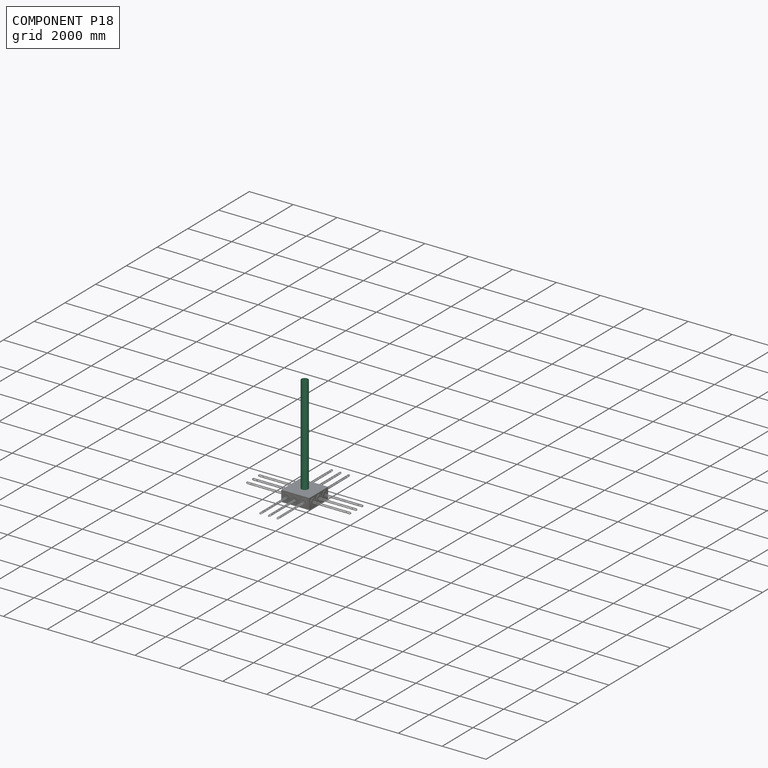
[diagram: component P18 — assembled]
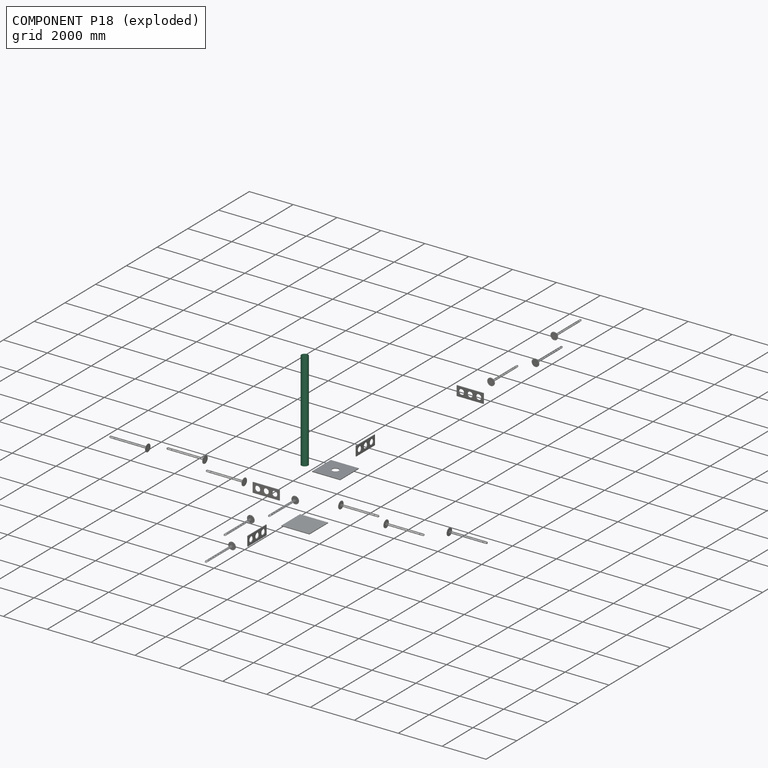
[diagram: component P18 — exploded]
COMPONENT P18 — recipe-attached (CADFS 00186371, mesh-verified: the recipe's output STEP matches this component's geometry to below the mesh-comparison resolution (tessellation chordal tolerance ~6.78 mm)).
Held by: CYLINDRICAL mate "Cylindrical 1" to P5; PLANAR mate "Planar 16" to P5.
Construction recipe (FeatureScript — the CAD program that rebuilds this solid; sketch coordinates are in the units given by the * unit suffixes, e.g. mm):

FeatureScript 1511;
import(path : "onshape/std/geometry.fs", version : "1511.0");
import(path : "onshape/std/common.fs", version : "1511.0");
const mm = millimeter;
const VERTEX = EntityType.VERTEX;
const EDGE = EntityType.EDGE;
const FACE = EntityType.FACE;
const BODY = EntityType.BODY;
function v(x, y){return vector(x, y);}
function OD(order){return orderDisambiguation(order);}
function OSD(set){return originalSetDisambiguation(set);}
function TD(topology){return topologyDisambiguation(topology);}
function TDD(query){return trueDependencyDisambiguation(query);}
function sQuery(a, b, c) {return sketchEntityQuery(a, b, c);}

annotation { "Feature Type Name" : "Feature", "Feature Type Description" : "" }
export const myFeature = defineFeature(function(context is Context, id is Id, definition is map)
    precondition{}
    {
        {
            var Q0;
            Q0=qCreatedBy(makeId("Top.planeOp"),FACE);
            var sketch = newSketch(context, id + "F0", { "sketchPlane" : qUnion([Q0])});
            skCircle(sketch, "E0", {"center": v(0, 0) * mm, "radius": 153 * mm});
            skCircle(sketch, "E1", {"center": v(0, 0) * mm, "radius": 150 * mm});
            skSolve(sketch);
        }
        {
            var Q0;
            Q0 = qSketchRegion(id + "F0", true);
            extrude(context, id + "F1", {"entities" : qUnion([Q0]), "depth" : 4500 * mm});
        }
    });
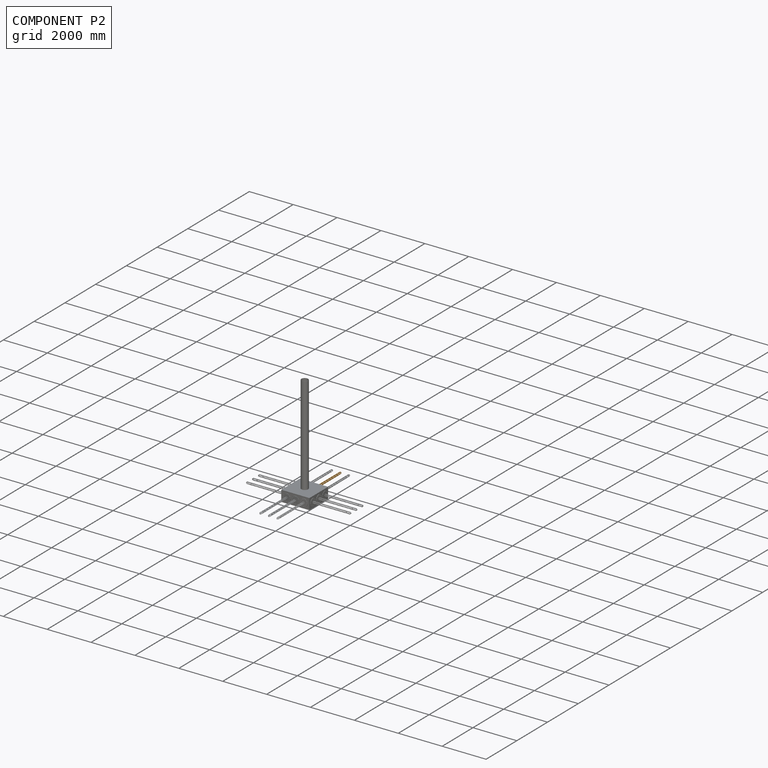
[diagram: component P2 — assembled]
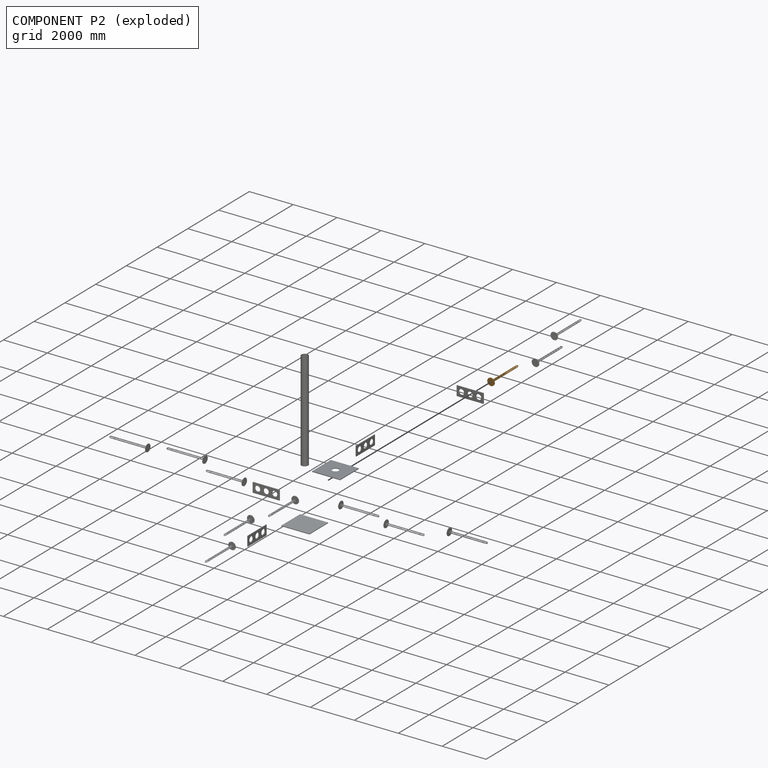
[diagram: component P2 — exploded]
COMPONENT P2 — geometry summary (no construction recipe available for this part):
  bounding box: 1746.7 x 340.0 x 340.0 mm
  B-rep topology: 1 solid, 33 faces, 194 edges
  volume: 1468101 mm^3 (1% of its bounding box)
  symmetry: 2-fold rotationally symmetric about the y axis; mirror-symmetric across its x mid-plane, z mid-plane
Held by: CYLINDRICAL mate "Cylindrical 16" to P13; PLANAR mate "Planar 23" to P13; CYLINDRICAL mate "Cylindrical 17" to P13.
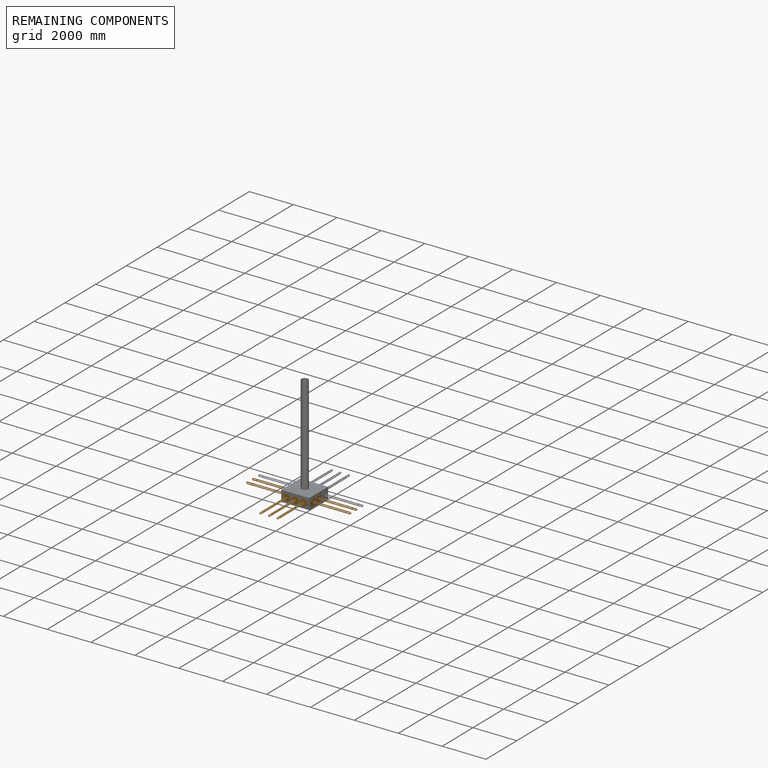
[diagram: remaining components — assembled]
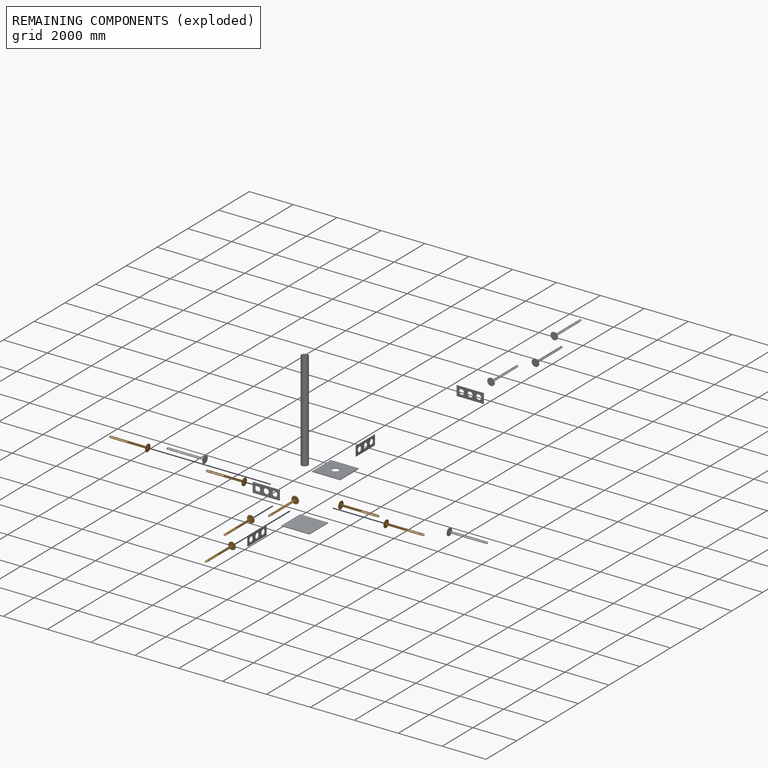
[diagram: remaining components — exploded]
REMAINING COMPONENTS (grouped) — the 7 components below fall outside the per-component tour by the significance rule stated above; both spotlight views highlight the whole group.
  P17: bounding box 1746.7 x 340.0 x 340.0 mm, volume 1468101 mm^3. Held by: CYLINDRICAL mate "Cylindrical 5" to P16; PLANAR mate "Planar 18" to P16; CYLINDRICAL mate "Cylindrical 4" to P16.
  P9: bounding box 1746.7 x 340.0 x 340.0 mm, volume 1468101 mm^3. Held by: CYLINDRICAL mate "Cylindrical 7" to P16; CYLINDRICAL mate "Cylindrical 6" to P16; PLANAR mate "Planar 19" to P16.
  P8: bounding box 1746.7 x 340.0 x 340.0 mm, volume 1468101 mm^3. Held by: PLANAR mate "Planar 22" to P15; CYLINDRICAL mate "Cylindrical 9" to P15; CYLINDRICAL mate "Cylindrical 8" to P15.
  P10: bounding box 1746.7 x 340.0 x 340.0 mm, volume 1468101 mm^3. Held by: CYLINDRICAL mate "Cylindrical 2" to P16; CYLINDRICAL mate "Cylindrical 3" to P16; PLANAR mate "Planar 17" to P16.
  P7: bounding box 1746.7 x 340.0 x 340.0 mm, volume 1468101 mm^3. Held by: CYLINDRICAL mate "Cylindrical 11" to P15; CYLINDRICAL mate "Cylindrical 10" to P15; PLANAR mate "Planar 21" to P15.
  P14: bounding box 1746.7 x 340.0 x 340.0 mm, volume 1468101 mm^3. Held by: CYLINDRICAL mate "Cylindrical 22" to P11; PLANAR mate "Planar 28" to P11; CYLINDRICAL mate "Cylindrical 23" to P11.
  P12: bounding box 1746.7 x 340.0 x 340.0 mm, volume 1468101 mm^3. Held by: CYLINDRICAL mate "Cylindrical 24" to P11; CYLINDRICAL mate "Cylindrical 25" to P11; PLANAR mate "Planar 26" to P11.
PROVENANCE & LICENSES
Assembly (occurrences, transforms, mates, per-part STEP geometry): AutoMate dataset, Zenodo record 7776208, CC0.
Construction recipes: CADFS (HuggingFace VladPyatov/CADFS, CC-BY-4.0, layered over the ABC dataset), FeatureScript reconstruction programs keyed by ABC model id.
Join: ABC meta listings map ABC model id -> Onshape documentId; within a shared document, parts are matched by geometric signature (bounding-box dims + volume at 0.1% relative tolerance, exact B-rep face/solid counts).
Verification: 7 of this assembly's 19 components carry a recipe attachment, and every attachment is mesh-verified: the CADFS STEP and the AutoMate member STEP were compared as meshes in their shared local frame (symmetric sampled-point-to-mesh distance); worst across the 7 attachments: below the mesh-comparison resolution (tessellation chordal tolerance ~6.78 mm) on a 4521 mm part.
Renders: orthographic iso camera (az 35 / el 25); the floor grid conveys scale (grid pitch printed in each image; no ruler). In the exploded view each component is displaced by its stored offset vector: the offsets alone carry the explosion direction (mate normal/axis signs are not orientation cues and do not encode it), and separation distances are assigned per mate-chain, not proportionally to assembly-order depth.
